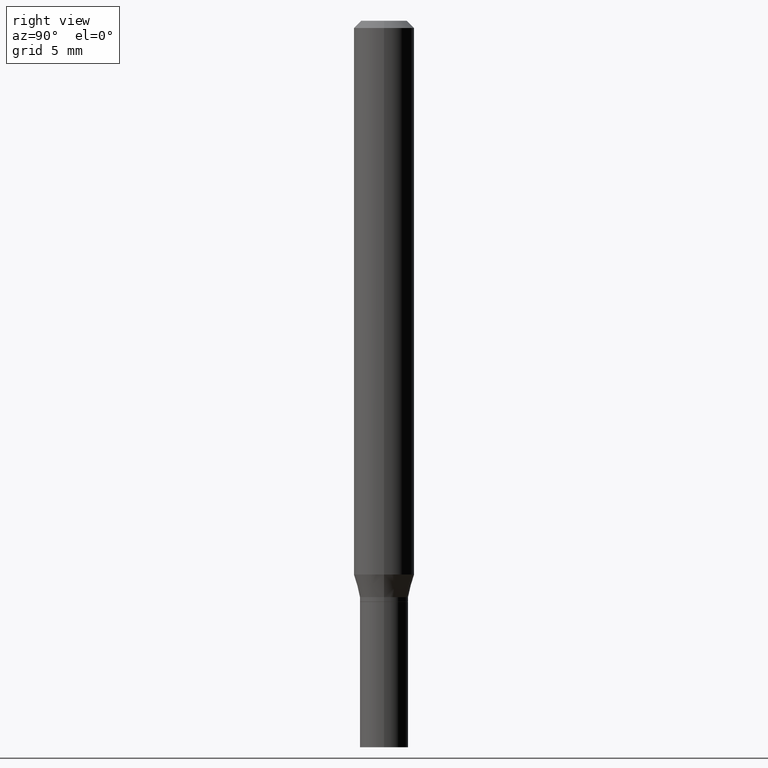
[diagram: clean part render]
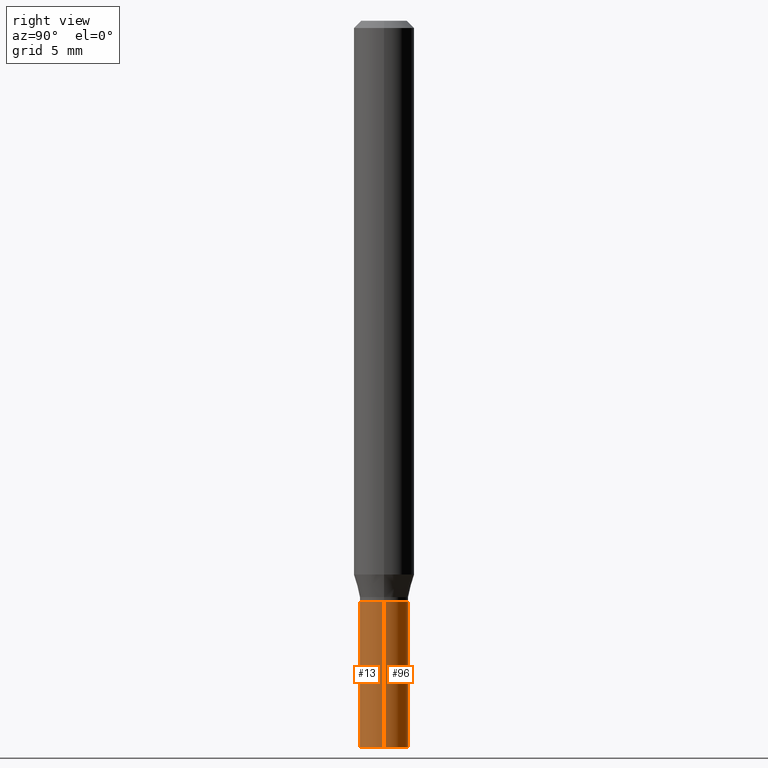
[diagram: same view with one multi-face feature highlighted, each face labeled with its STEP entity id]
A machine part, right view. The highlighted faces form ONE feature: a constant-radius fillet chain: 2 tangent blend faces with common blend radius 1.27 mm. The faces share edges in the B-rep.
Their STEP definitions:
[1] entity #13 (Cylinder):
#13 = ADVANCED_FACE ( 'NONE', ( #143 ), #29, .T. ) ;
#29 = CYLINDRICAL_SURFACE ( 'NONE', #452, 0.05000000000000000278 ) ;
#33 = DIRECTION ( 'NONE',  ( -2.445468806185136597E-29, 3.491481338843145583E-15, 1.000000000000000000 ) ) ;
#40 = DIRECTION ( 'NONE',  ( -2.445468806185136877E-29, 3.491481338843145188E-15, 1.000000000000000000 ) ) ;
#44 = CARTESIAN_POINT ( 'NONE',  ( -0.05000000000000000278, -4.358228439558196976E-15, -1.200000000000000178 ) ) ;
#47 = CARTESIAN_POINT ( 'NONE',  ( -0.05000000000000000278, -4.358228439558196976E-15, -1.500000000000000222 ) ) ;
#69 = CIRCLE ( 'NONE', #398, 0.05000000000000000278 ) ;
#72 = CARTESIAN_POINT ( 'NONE',  ( 0.05000000000000000278, -4.538925740496089139E-15, -1.200000000000000178 ) ) ;
#91 = EDGE_CURVE ( 'NONE', #242, #313, #69, .T. ) ;
#101 = DIRECTION ( 'NONE',  ( -2.445468806185136597E-29, 3.491481338843145583E-15, 1.000000000000000000 ) ) ;
#103 = DIRECTION ( 'NONE',  ( 1.000000000000000000, -6.982962677686274599E-15, 0.000000000000000000 ) ) ;
#109 = LINE ( 'NONE', #280, #429 ) ;
#111 = DIRECTION ( 'NONE',  ( 1.000000000000000000, -6.982962677686274599E-15, 0.000000000000000000 ) ) ;
#116 = LINE ( 'NONE', #408, #261 ) ;
#143 = FACE_OUTER_BOUND ( 'NONE', #197, .T. ) ;
#155 = CARTESIAN_POINT ( 'NONE',  ( 0.05000000000000000278, -5.586370142149032301E-15, -1.500000000000000222 ) ) ;
#174 = ORIENTED_EDGE ( 'NONE', *, *, #293, .F. ) ;
#197 = EDGE_LOOP ( 'NONE', ( #174, #388, #274, #235 ) ) ;
#207 = VERTEX_POINT ( 'NONE', #155 ) ;
#235 = ORIENTED_EDGE ( 'NONE', *, *, #91, .F. ) ;
#242 = VERTEX_POINT ( 'NONE', #44 ) ;
#252 = CARTESIAN_POINT ( 'NONE',  ( 0.000000000000000000, 0.000000000000000000, 0.000000000000000000 ) ) ;
#261 = VECTOR ( 'NONE', #40, 39.37007874015748143 ) ;
#274 = ORIENTED_EDGE ( 'NONE', *, *, #370, .T. ) ;
#280 = CARTESIAN_POINT ( 'NONE',  ( -0.05000000000000000278, 3.552713678800501127E-16, -2.459467545127453311E-30 ) ) ;
#284 = DIRECTION ( 'NONE',  ( 1.000000000000000000, -6.982962677686267499E-15, 4.876176775795936353E-29 ) ) ;
#293 = EDGE_CURVE ( 'NONE', #391, #242, #109, .T. ) ;
#306 = EDGE_CURVE ( 'NONE', #391, #207, #440, .T. ) ;
#313 = VERTEX_POINT ( 'NONE', #72 ) ;
#317 = DIRECTION ( 'NONE',  ( -2.445468806185136597E-29, 3.491481338843145583E-15, 1.000000000000000000 ) ) ;
#329 = AXIS2_PLACEMENT_3D ( 'NONE', #389, #101, #103 ) ;
#370 = EDGE_CURVE ( 'NONE', #207, #313, #116, .T. ) ;
#388 = ORIENTED_EDGE ( 'NONE', *, *, #306, .T. ) ;
#389 = CARTESIAN_POINT ( 'NONE',  ( 3.668203209277704895E-29, -5.237222008264718177E-15, -1.500000000000000222 ) ) ;
#391 = VERTEX_POINT ( 'NONE', #47 ) ;
#398 = AXIS2_PLACEMENT_3D ( 'NONE', #431, #317, #111 ) ;
#408 = CARTESIAN_POINT ( 'NONE',  ( 0.05000000000000000278, -3.491481338843133848E-16, 2.438088387897968247E-30 ) ) ;
#429 = VECTOR ( 'NONE', #459, 39.37007874015748143 ) ;
#431 = CARTESIAN_POINT ( 'NONE',  ( 2.934562567422164701E-29, -4.189777606611775804E-15, -1.200000000000000178 ) ) ;
#440 = CIRCLE ( 'NONE', #329, 0.05000000000000000278 ) ;
#452 = AXIS2_PLACEMENT_3D ( 'NONE', #252, #33, #284 ) ;
#459 = DIRECTION ( 'NONE',  ( -2.445468806185136877E-29, 3.491481338843145188E-15, 1.000000000000000000 ) ) ;
[2] entity #96 (Cylinder):
#36 = CARTESIAN_POINT ( 'NONE',  ( 2.934562567422164701E-29, -4.189777606611775804E-15, -1.200000000000000178 ) ) ;
#40 = DIRECTION ( 'NONE',  ( -2.445468806185136877E-29, 3.491481338843145188E-15, 1.000000000000000000 ) ) ;
#44 = CARTESIAN_POINT ( 'NONE',  ( -0.05000000000000000278, -4.358228439558196976E-15, -1.200000000000000178 ) ) ;
#47 = CARTESIAN_POINT ( 'NONE',  ( -0.05000000000000000278, -4.358228439558196976E-15, -1.500000000000000222 ) ) ;
#61 = ORIENTED_EDGE ( 'NONE', *, *, #293, .T. ) ;
#72 = CARTESIAN_POINT ( 'NONE',  ( 0.05000000000000000278, -4.538925740496089139E-15, -1.200000000000000178 ) ) ;
#74 = DIRECTION ( 'NONE',  ( -2.445468806185136597E-29, 3.491481338843145583E-15, 1.000000000000000000 ) ) ;
#78 = CARTESIAN_POINT ( 'NONE',  ( 0.000000000000000000, 0.000000000000000000, 0.000000000000000000 ) ) ;
#79 = DIRECTION ( 'NONE',  ( 1.000000000000000000, -6.982962677686274599E-15, 0.000000000000000000 ) ) ;
#92 = EDGE_LOOP ( 'NONE', ( #100, #61, #247, #167 ) ) ;
#96 = ADVANCED_FACE ( 'NONE', ( #401 ), #180, .T. ) ;
#100 = ORIENTED_EDGE ( 'NONE', *, *, #259, .T. ) ;
#109 = LINE ( 'NONE', #280, #429 ) ;
#116 = LINE ( 'NONE', #408, #261 ) ;
#150 = DIRECTION ( 'NONE',  ( 1.000000000000000000, -6.982962677686274599E-15, 0.000000000000000000 ) ) ;
#155 = CARTESIAN_POINT ( 'NONE',  ( 0.05000000000000000278, -5.586370142149032301E-15, -1.500000000000000222 ) ) ;
#159 = AXIS2_PLACEMENT_3D ( 'NONE', #36, #365, #150 ) ;
#167 = ORIENTED_EDGE ( 'NONE', *, *, #370, .F. ) ;
#180 = CYLINDRICAL_SURFACE ( 'NONE', #327, 0.05000000000000000278 ) ;
#190 = DIRECTION ( 'NONE',  ( -2.445468806185136597E-29, 3.491481338843145583E-15, 1.000000000000000000 ) ) ;
#207 = VERTEX_POINT ( 'NONE', #155 ) ;
#229 = CARTESIAN_POINT ( 'NONE',  ( 3.668203209277704895E-29, -5.237222008264718177E-15, -1.500000000000000222 ) ) ;
#242 = VERTEX_POINT ( 'NONE', #44 ) ;
#247 = ORIENTED_EDGE ( 'NONE', *, *, #354, .F. ) ;
#259 = EDGE_CURVE ( 'NONE', #207, #391, #424, .T. ) ;
#261 = VECTOR ( 'NONE', #40, 39.37007874015748143 ) ;
#280 = CARTESIAN_POINT ( 'NONE',  ( -0.05000000000000000278, 3.552713678800501127E-16, -2.459467545127453311E-30 ) ) ;
#293 = EDGE_CURVE ( 'NONE', #391, #242, #109, .T. ) ;
#313 = VERTEX_POINT ( 'NONE', #72 ) ;
#327 = AXIS2_PLACEMENT_3D ( 'NONE', #78, #74, #358 ) ;
#354 = EDGE_CURVE ( 'NONE', #313, #242, #405, .T. ) ;
#358 = DIRECTION ( 'NONE',  ( 1.000000000000000000, -6.982962677686267499E-15, 4.876176775795936353E-29 ) ) ;
#365 = DIRECTION ( 'NONE',  ( -2.445468806185136597E-29, 3.491481338843145583E-15, 1.000000000000000000 ) ) ;
#370 = EDGE_CURVE ( 'NONE', #207, #313, #116, .T. ) ;
#391 = VERTEX_POINT ( 'NONE', #47 ) ;
#401 = FACE_OUTER_BOUND ( 'NONE', #92, .T. ) ;
#405 = CIRCLE ( 'NONE', #159, 0.05000000000000000278 ) ;
#408 = CARTESIAN_POINT ( 'NONE',  ( 0.05000000000000000278, -3.491481338843133848E-16, 2.438088387897968247E-30 ) ) ;
#424 = CIRCLE ( 'NONE', #443, 0.05000000000000000278 ) ;
#429 = VECTOR ( 'NONE', #459, 39.37007874015748143 ) ;
#443 = AXIS2_PLACEMENT_3D ( 'NONE', #229, #190, #79 ) ;
#459 = DIRECTION ( 'NONE',  ( -2.445468806185136877E-29, 3.491481338843145188E-15, 1.000000000000000000 ) ) ;